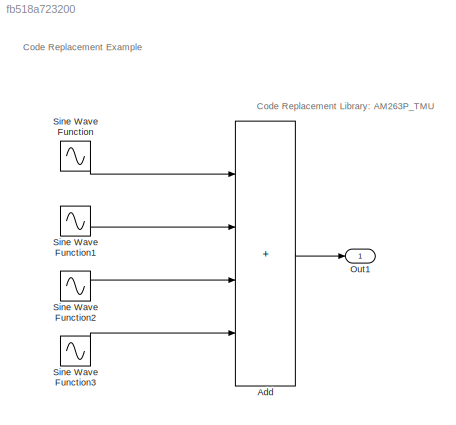
MODEL slx_fb518a723200
KIND model
CONFIG AbsTol = auto
CONFIG EnableMultiTasking = off
CONFIG FixedStep = auto
CONFIG MaxStep = auto
CONFIG MinStep = auto
CONFIG RelTol = 1e-3
CONFIG SampleTimeConstraint = Unconstrained
CONFIG SolverName = FixedStepAuto
CONFIG StartTime = 0.0
CONFIG StopTime = 10.0
BLOCK [Sum] Add
  IconShape = rectangular
  Inputs = ++++
BLOCK [Outport] Out1
BLOCK [Sin] Sine Wave Function
  Amplitude = 46
  Frequency = 2*pi*50
  SampleTime = 7e-6
BLOCK [Sin] Sine Wave Function1
  Amplitude = 230*sqrt(2)
  Frequency = 2*pi*50
  SampleTime = 7e-6
BLOCK [Sin] Sine Wave Function2
  Amplitude = 30
  Frequency = 2*pi*50*3
  SampleTime = 7e-6
BLOCK [Sin] Sine Wave Function3
  Amplitude = 15
  Frequency = 2*pi*50*5
  SampleTime = 7e-6
ANNOTATION (root): Code Replacement Example
ANNOTATION (root): Code Replacement Library: AM263P_TMU
LINE Add:1 -> Out1:1
LINE Sine Wave Function1:1 -> Add:2
LINE Sine Wave Function2:1 -> Add:3
LINE Sine Wave Function3:1 -> Add:4
LINE Sine Wave Function:1 -> Add:1
